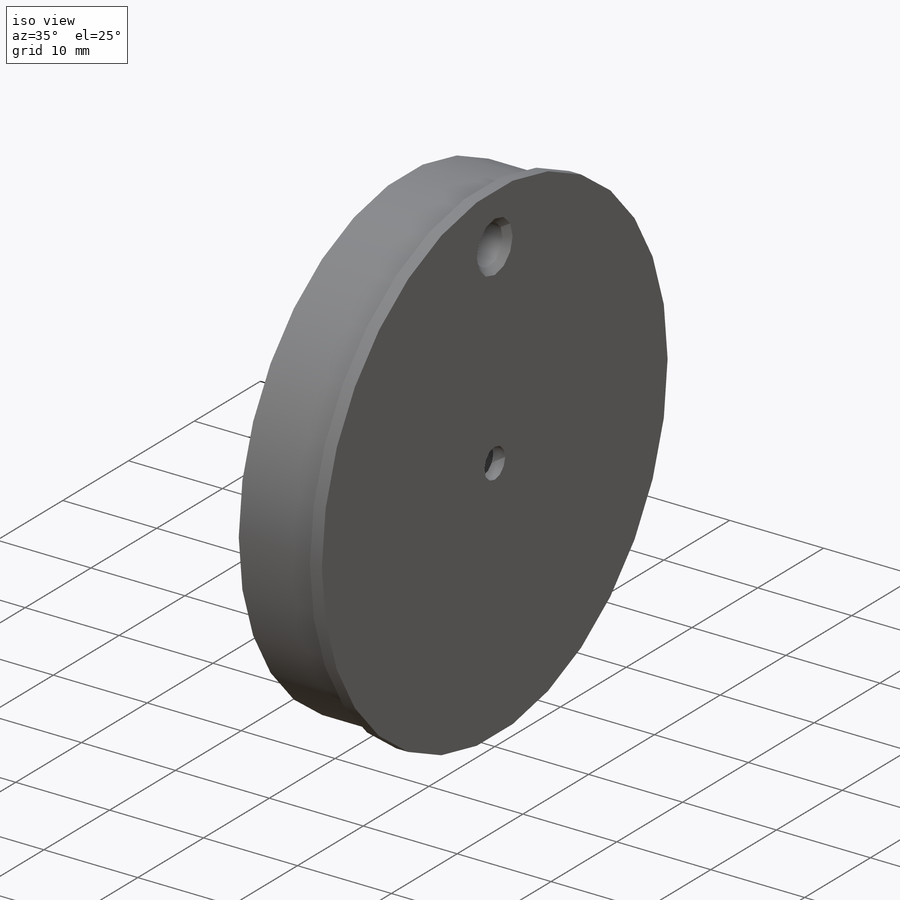
[diagram: iso view]
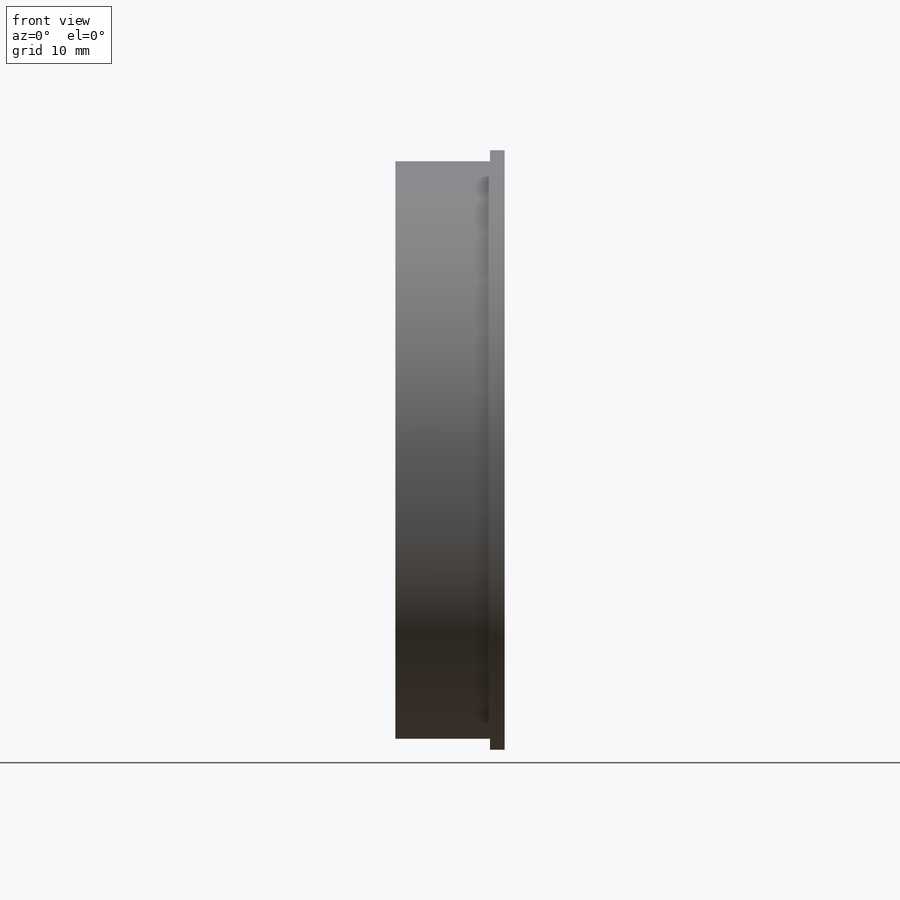
[diagram: front view]
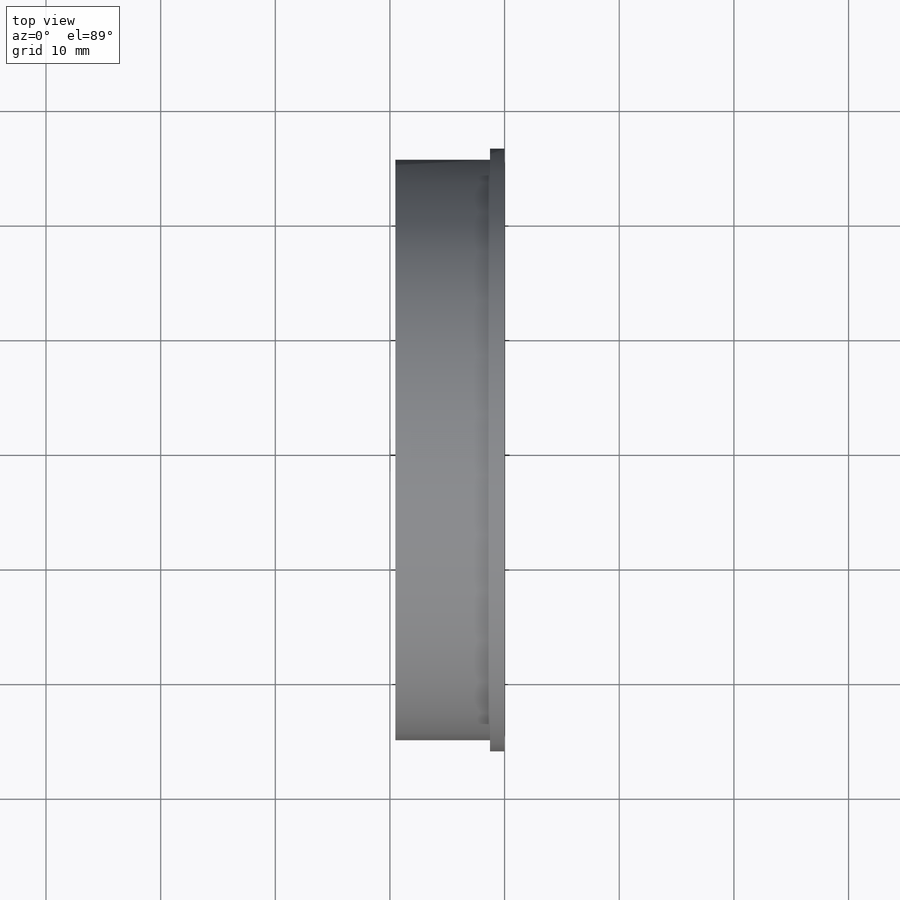
[diagram: top view]
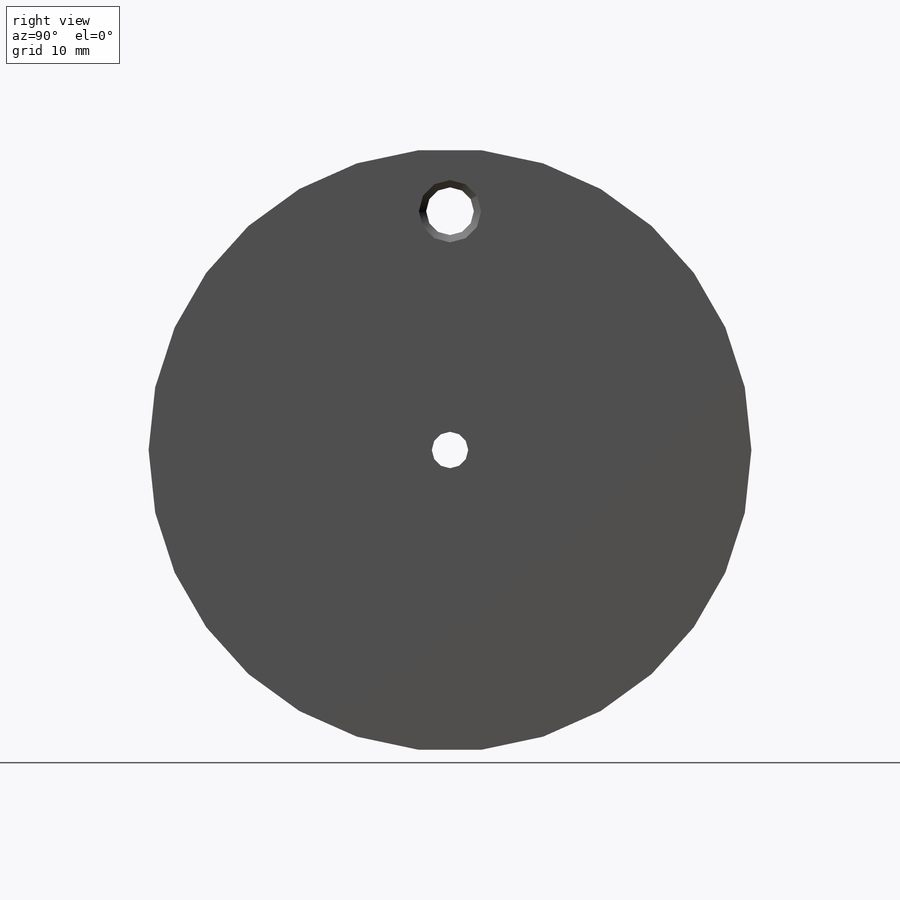
[diagram: right view]
SOLIDWORKS PART (.sldprt)
format: sldprt  version: not decoded by parser v0  size: 749,056 bytes
history: native  units: mm
features: sketch x4, material x1, revolve x1, hole x1, cut_revolve x1 (+11 scaffold rows collapsed)
feature tree (19):
  scaffold x11  (default folders/planes/origin — collapsed)
  material  "6061-T6 Al"
  sketch  "Sketch1"  dims[c1.D10=1.27mm c1.D1=63.5mm c1.D2=133.35mm c1.D3=12.446mm c1.D4=23.368mm c2.D1=3.175mm c2.D2=1.27mm c2.D3=52.578mm c2.D4=50.6476mm c2.D5=10.16mm c2.D6=10.16mm c2.D7=30.3276mm c2.D8=30.3276mm c3.D7=30.3276mm c3.D8=30.3276mm c3.D5=34.3916mm c3.D6=9.525mm c4.D7=8.128mm c4.D8=~1.219445mm c5.D8=45.0deg c5.D9=7.366mm c5.D10=7.62mm c6.D9=0.508mm c6.D11=52.578mm c6.D3=52.578mm c7.D11=0.9652mm c7.D8=1.27mm c8.D8=45.0deg c8.D10=8.255mm c8.D12=4.572mm c9.D8=12.7mm]
  revolve  "Revolve1"  Angle=360deg
  hole  "#8-32 Tapped Hole1"  Diameter=4.1656mm Depth=9.525mm
  sketch  "Sketch4"  dims[c1.D1=6.7564mm c1.D2=9.525mm c1.D3=6.7564mm c2.D2=8.128mm c2.D4=8.89mm c2.D1=20.828mm c3.D4=0.4318mm]
  sketch  "Sketch3"  dims[hole-wizard template sketch: 46 standard entries collapsed; hole parameters kept: c15.Thread Major Dia.=4.1656mm c15.Thru Tap Drill Depth=9.525mm c15.Near C'Sink Dia.=5.4356mm c15.D4=~3.666174mm c15.Near C'Sink Angle=90.0deg c15.Far C'Sink Dia.=5.4356mm c15.D6=~9.919017mm c15.Far C'Sink Angle=90.0deg]
  sketch  "Sketch2"  dims[D1=11.43mm]
  cut_revolve  "Cut-Revolve1"  Angle=360deg
decode coverage: 7 of 7 modeling features carry decoded parameters
note: ~ marks probable driven/reference dimensions
note: suppression state not decoded; provenance and decode notes live in map.json
